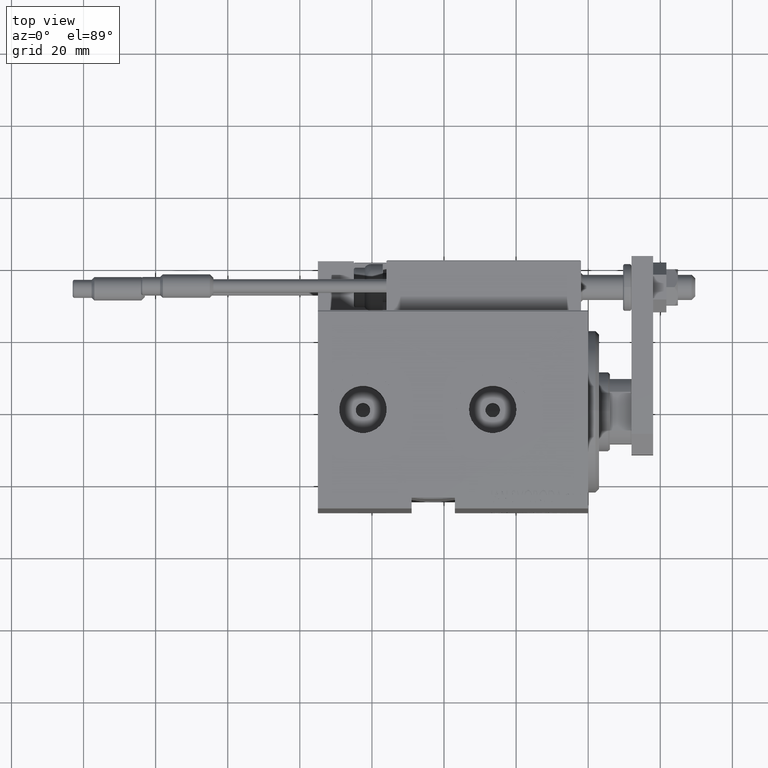
[diagram: clean part render]
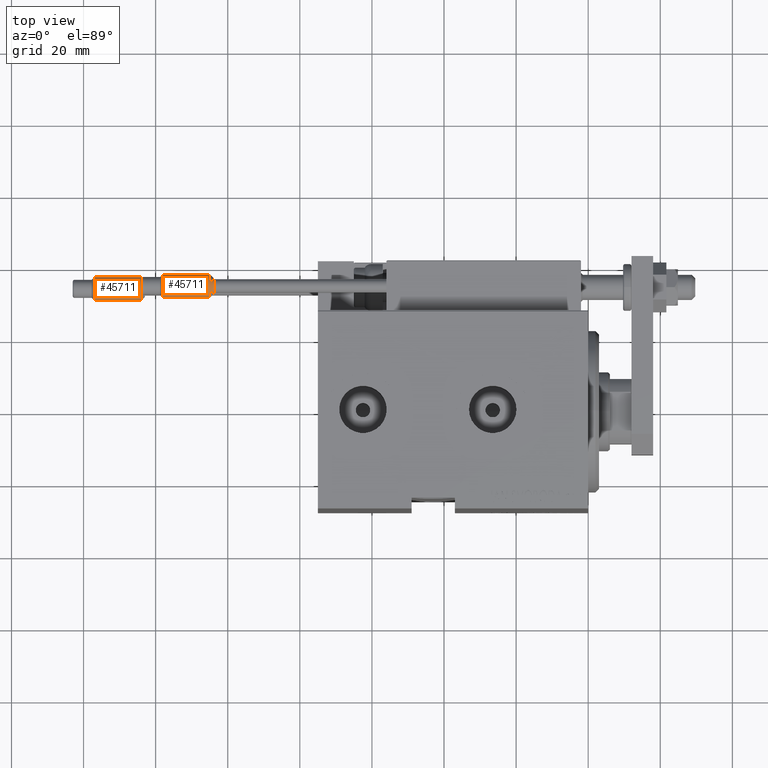
[diagram: same view with one multi-face feature highlighted, each face labeled with its STEP entity id]
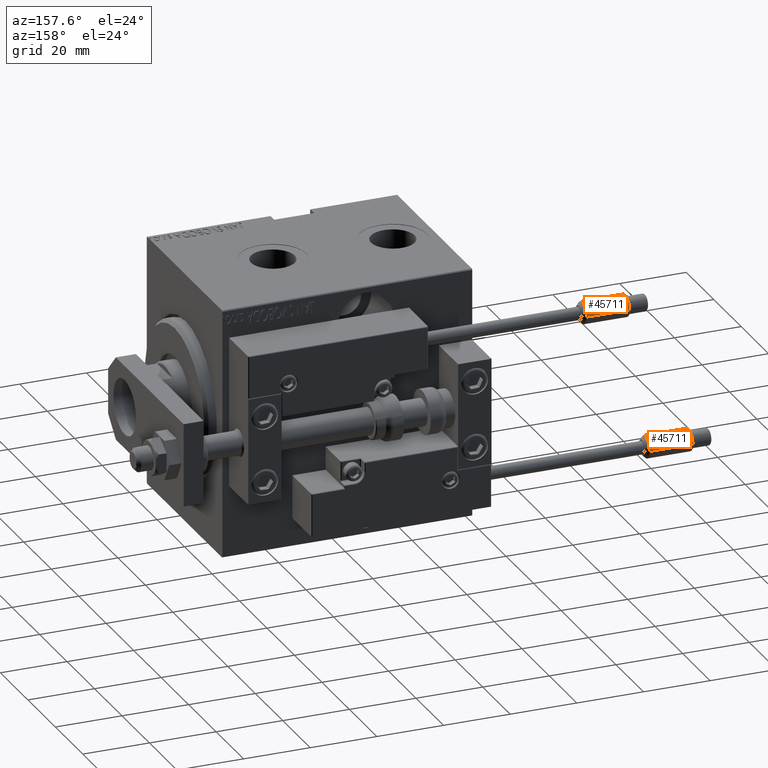
[diagram: same view with one multi-face feature highlighted, each face labeled with its STEP entity id]
A machine part, top view. The highlighted faces form ONE feature: a constant-radius fillet chain: 2 tangent blend faces with common blend radius 3.25 mm. The faces share edges in the B-rep.
A second angle (auxiliary view) of the same feature is appended — it is thin or edge-on in the first view.
Their STEP definitions:
[1] entity #45711 (Cylinder):
#572 = CYLINDRICAL_SURFACE ( 'NONE', #30049, 3.250000000000000444 ) ;
#968 = VERTEX_POINT ( 'NONE', #16272 ) ;
#1112 = LINE ( 'NONE', #12524, #45742 ) ;
#4983 = AXIS2_PLACEMENT_3D ( 'NONE', #5245, #28822, #48238 ) ;
#5245 = CARTESIAN_POINT ( 'NONE',  ( 0.000000000000000000, 0.000000000000000000, 61.99999999999999289 ) ) ;
#5685 = AXIS2_PLACEMENT_3D ( 'NONE', #30826, #31087, #33960 ) ;
#6154 = CARTESIAN_POINT ( 'NONE',  ( 3.250000000000000444, 3.980102097228898231E-16, 48.99999999999998579 ) ) ;
#6819 = EDGE_LOOP ( 'NONE', ( #30828, #37850, #50688, #40142 ) ) ;
#9110 = FACE_OUTER_BOUND ( 'NONE', #6819, .T. ) ;
#9111 = LINE ( 'NONE', #43822, #20639 ) ;
#11186 = VERTEX_POINT ( 'NONE', #43407 ) ;
#11673 = EDGE_CURVE ( 'NONE', #968, #12482, #1112, .T. ) ;
#12482 = VERTEX_POINT ( 'NONE', #6154 ) ;
#12524 = CARTESIAN_POINT ( 'NONE',  ( 3.250000000000000444, 3.980102097228898231E-16, 63.00000000000000000 ) ) ;
#12773 = VERTEX_POINT ( 'NONE', #28076 ) ;
#16272 = CARTESIAN_POINT ( 'NONE',  ( 3.250000000000000444, 3.980102097228898231E-16, 61.99999999999999289 ) ) ;
#20639 = VECTOR ( 'NONE', #24924, 1000.000000000000000 ) ;
#24695 = CIRCLE ( 'NONE', #5685, 3.250000000000000444 ) ;
#24923 = CARTESIAN_POINT ( 'NONE',  ( 0.000000000000000000, 0.000000000000000000, 63.00000000000000000 ) ) ;
#24924 = DIRECTION ( 'NONE',  ( -0.000000000000000000, -0.000000000000000000, -1.000000000000000000 ) ) ;
#25427 = DIRECTION ( 'NONE',  ( -0.000000000000000000, -0.000000000000000000, -1.000000000000000000 ) ) ;
#25653 = CIRCLE ( 'NONE', #4983, 3.250000000000000444 ) ;
#28076 = CARTESIAN_POINT ( 'NONE',  ( -3.250000000000000444, 0.000000000000000000, 48.99999999999998579 ) ) ;
#28251 = EDGE_CURVE ( 'NONE', #12773, #12482, #24695, .T. ) ;
#28822 = DIRECTION ( 'NONE',  ( 0.000000000000000000, 0.000000000000000000, -1.000000000000000000 ) ) ;
#30049 = AXIS2_PLACEMENT_3D ( 'NONE', #24923, #25427, #48719 ) ;
#30826 = CARTESIAN_POINT ( 'NONE',  ( 0.000000000000000000, 0.000000000000000000, 48.99999999999998579 ) ) ;
#30828 = ORIENTED_EDGE ( 'NONE', *, *, #11673, .F. ) ;
#31027 = EDGE_CURVE ( 'NONE', #11186, #12773, #9111, .T. ) ;
#31087 = DIRECTION ( 'NONE',  ( -0.000000000000000000, -0.000000000000000000, 1.000000000000000000 ) ) ;
#33960 = DIRECTION ( 'NONE',  ( 1.000000000000000000, 0.000000000000000000, 0.000000000000000000 ) ) ;
#35714 = EDGE_CURVE ( 'NONE', #968, #11186, #25653, .T. ) ;
#37850 = ORIENTED_EDGE ( 'NONE', *, *, #35714, .T. ) ;
#40142 = ORIENTED_EDGE ( 'NONE', *, *, #28251, .T. ) ;
#43407 = CARTESIAN_POINT ( 'NONE',  ( -3.250000000000000444, 0.000000000000000000, 61.99999999999999289 ) ) ;
#43822 = CARTESIAN_POINT ( 'NONE',  ( -3.250000000000000444, 0.000000000000000000, 63.00000000000000000 ) ) ;
#45711 = ADVANCED_FACE ( 'NONE', ( #9110 ), #572, .T. ) ;
#45742 = VECTOR ( 'NONE', #48499, 1000.000000000000000 ) ;
#48238 = DIRECTION ( 'NONE',  ( 1.000000000000000000, 0.000000000000000000, 0.000000000000000000 ) ) ;
#48499 = DIRECTION ( 'NONE',  ( -0.000000000000000000, -0.000000000000000000, -1.000000000000000000 ) ) ;
#48719 = DIRECTION ( 'NONE',  ( -1.000000000000000000, 0.000000000000000000, 0.000000000000000000 ) ) ;
#50688 = ORIENTED_EDGE ( 'NONE', *, *, #31027, .T. ) ;
[2] entity #45711 (Cylinder):
#572 = CYLINDRICAL_SURFACE ( 'NONE', #30049, 3.250000000000000444 ) ;
#968 = VERTEX_POINT ( 'NONE', #16272 ) ;
#1112 = LINE ( 'NONE', #12524, #45742 ) ;
#4983 = AXIS2_PLACEMENT_3D ( 'NONE', #5245, #28822, #48238 ) ;
#5245 = CARTESIAN_POINT ( 'NONE',  ( 0.000000000000000000, 0.000000000000000000, 61.99999999999999289 ) ) ;
#5685 = AXIS2_PLACEMENT_3D ( 'NONE', #30826, #31087, #33960 ) ;
#6154 = CARTESIAN_POINT ( 'NONE',  ( 3.250000000000000444, 3.980102097228898231E-16, 48.99999999999998579 ) ) ;
#6819 = EDGE_LOOP ( 'NONE', ( #30828, #37850, #50688, #40142 ) ) ;
#9110 = FACE_OUTER_BOUND ( 'NONE', #6819, .T. ) ;
#9111 = LINE ( 'NONE', #43822, #20639 ) ;
#11186 = VERTEX_POINT ( 'NONE', #43407 ) ;
#11673 = EDGE_CURVE ( 'NONE', #968, #12482, #1112, .T. ) ;
#12482 = VERTEX_POINT ( 'NONE', #6154 ) ;
#12524 = CARTESIAN_POINT ( 'NONE',  ( 3.250000000000000444, 3.980102097228898231E-16, 63.00000000000000000 ) ) ;
#12773 = VERTEX_POINT ( 'NONE', #28076 ) ;
#16272 = CARTESIAN_POINT ( 'NONE',  ( 3.250000000000000444, 3.980102097228898231E-16, 61.99999999999999289 ) ) ;
#20639 = VECTOR ( 'NONE', #24924, 1000.000000000000000 ) ;
#24695 = CIRCLE ( 'NONE', #5685, 3.250000000000000444 ) ;
#24923 = CARTESIAN_POINT ( 'NONE',  ( 0.000000000000000000, 0.000000000000000000, 63.00000000000000000 ) ) ;
#24924 = DIRECTION ( 'NONE',  ( -0.000000000000000000, -0.000000000000000000, -1.000000000000000000 ) ) ;
#25427 = DIRECTION ( 'NONE',  ( -0.000000000000000000, -0.000000000000000000, -1.000000000000000000 ) ) ;
#25653 = CIRCLE ( 'NONE', #4983, 3.250000000000000444 ) ;
#28076 = CARTESIAN_POINT ( 'NONE',  ( -3.250000000000000444, 0.000000000000000000, 48.99999999999998579 ) ) ;
#28251 = EDGE_CURVE ( 'NONE', #12773, #12482, #24695, .T. ) ;
#28822 = DIRECTION ( 'NONE',  ( 0.000000000000000000, 0.000000000000000000, -1.000000000000000000 ) ) ;
#30049 = AXIS2_PLACEMENT_3D ( 'NONE', #24923, #25427, #48719 ) ;
#30826 = CARTESIAN_POINT ( 'NONE',  ( 0.000000000000000000, 0.000000000000000000, 48.99999999999998579 ) ) ;
#30828 = ORIENTED_EDGE ( 'NONE', *, *, #11673, .F. ) ;
#31027 = EDGE_CURVE ( 'NONE', #11186, #12773, #9111, .T. ) ;
#31087 = DIRECTION ( 'NONE',  ( -0.000000000000000000, -0.000000000000000000, 1.000000000000000000 ) ) ;
#33960 = DIRECTION ( 'NONE',  ( 1.000000000000000000, 0.000000000000000000, 0.000000000000000000 ) ) ;
#35714 = EDGE_CURVE ( 'NONE', #968, #11186, #25653, .T. ) ;
#37850 = ORIENTED_EDGE ( 'NONE', *, *, #35714, .T. ) ;
#40142 = ORIENTED_EDGE ( 'NONE', *, *, #28251, .T. ) ;
#43407 = CARTESIAN_POINT ( 'NONE',  ( -3.250000000000000444, 0.000000000000000000, 61.99999999999999289 ) ) ;
#43822 = CARTESIAN_POINT ( 'NONE',  ( -3.250000000000000444, 0.000000000000000000, 63.00000000000000000 ) ) ;
#45711 = ADVANCED_FACE ( 'NONE', ( #9110 ), #572, .T. ) ;
#45742 = VECTOR ( 'NONE', #48499, 1000.000000000000000 ) ;
#48238 = DIRECTION ( 'NONE',  ( 1.000000000000000000, 0.000000000000000000, 0.000000000000000000 ) ) ;
#48499 = DIRECTION ( 'NONE',  ( -0.000000000000000000, -0.000000000000000000, -1.000000000000000000 ) ) ;
#48719 = DIRECTION ( 'NONE',  ( -1.000000000000000000, 0.000000000000000000, 0.000000000000000000 ) ) ;
#50688 = ORIENTED_EDGE ( 'NONE', *, *, #31027, .T. ) ;